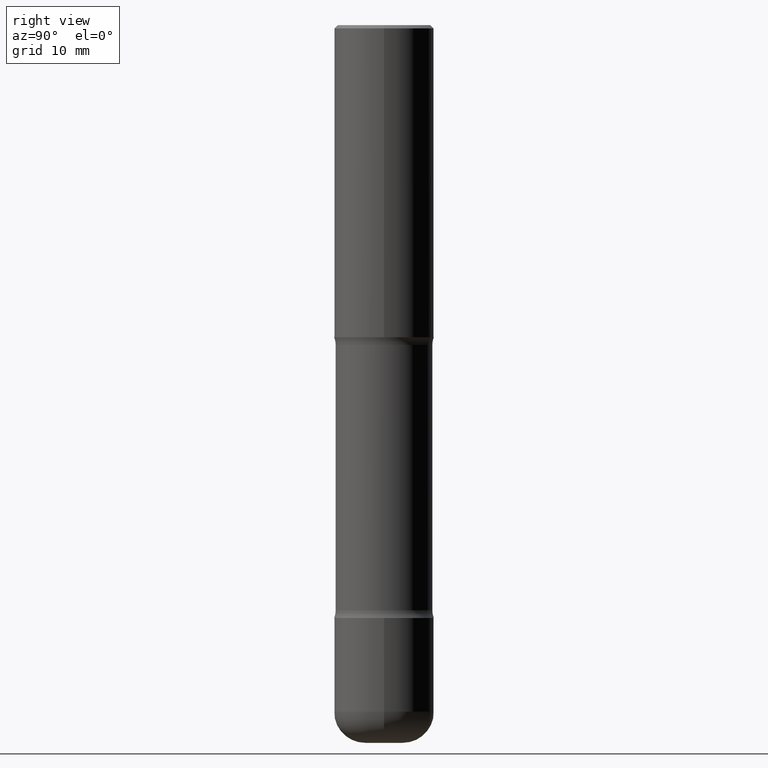
[diagram: clean part render]
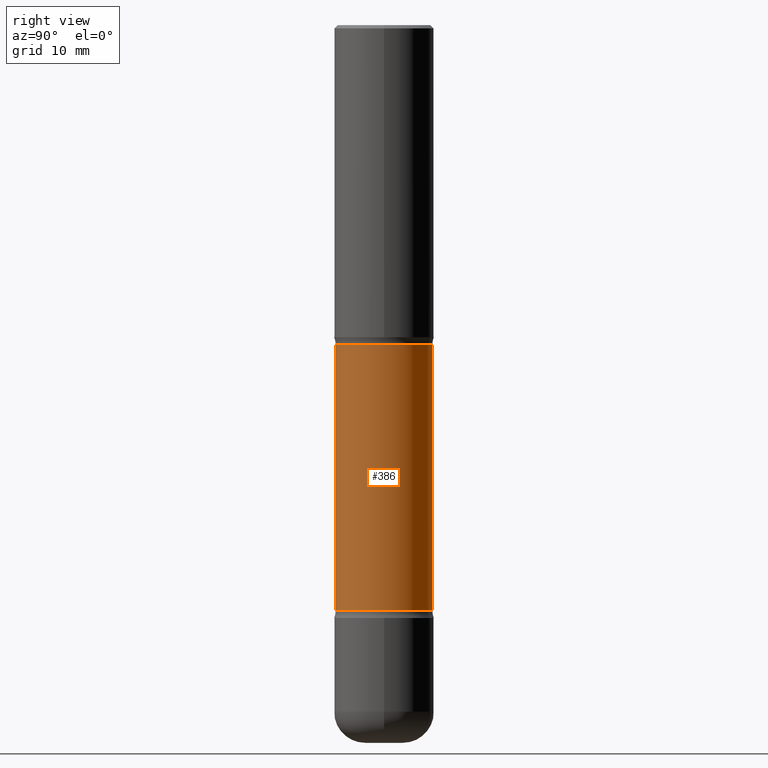
[diagram: same view with one face highlighted and labeled with its STEP entity id]
A machine part, right view. The second image highlights one B-rep face of the part: STEP entity #386.
In plain terms, the highlighted cylindrical surface (partial cylindrical patch) has radius 7.747 mm, axis along (0, -0, -1).
Its self-contained STEP definition (entity closure, byte-faithful):
#2 = VERTEX_POINT ( 'NONE', #418 ) ;
#4 = EDGE_CURVE ( 'NONE', #214, #2, #13, .T. ) ;
#13 = LINE ( 'NONE', #535, #199 ) ;
#29 = ORIENTED_EDGE ( 'NONE', *, *, #178, .T. ) ;
#53 = EDGE_CURVE ( 'NONE', #102, #414, #425, .T. ) ;
#55 = CYLINDRICAL_SURFACE ( 'NONE', #219, 0.3049999999999999378 ) ;
#102 = VERTEX_POINT ( 'NONE', #338 ) ;
#109 = ORIENTED_EDGE ( 'NONE', *, *, #4, .F. ) ;
#131 = CARTESIAN_POINT ( 'NONE',  ( 4.823971588662791399E-29, -7.200355267551965208E-15, -2.017372256956274423 ) ) ;
#154 = ORIENTED_EDGE ( 'NONE', *, *, #521, .F. ) ;
#178 = EDGE_CURVE ( 'NONE', #214, #102, #538, .T. ) ;
#193 = DIRECTION ( 'NONE',  ( 2.508997697352003204E-29, -3.400504350852260021E-15, -1.000000000000000000 ) ) ;
#199 = VECTOR ( 'NONE', #318, 39.37007874015748143 ) ;
#214 = VERTEX_POINT ( 'NONE', #266 ) ;
#219 = AXIS2_PLACEMENT_3D ( 'NONE', #412, #193, #372 ) ;
#245 = DIRECTION ( 'NONE',  ( 2.508997697352003204E-29, -3.400504350852260021E-15, -1.000000000000000000 ) ) ;
#266 = CARTESIAN_POINT ( 'NONE',  ( 2.129803616694359388E-15, 0.3049999999999927769, -2.017372256956275756 ) ) ;
#296 = DIRECTION ( 'NONE',  ( 2.508997697352003204E-29, -3.400504350852260021E-15, -1.000000000000000000 ) ) ;
#306 = EDGE_LOOP ( 'NONE', ( #29, #517, #154, #109 ) ) ;
#307 = DIRECTION ( 'NONE',  ( 2.508997697352003204E-29, -3.400504350852260021E-15, -1.000000000000000000 ) ) ;
#318 = DIRECTION ( 'NONE',  ( 2.508997697352003204E-29, -3.400504350852260021E-15, -1.000000000000000000 ) ) ;
#325 = FACE_OUTER_BOUND ( 'NONE', #306, .T. ) ;
#338 = CARTESIAN_POINT ( 'NONE',  ( -2.126582866859184041E-15, -0.3050000000000072098, -2.017372256956273535 ) ) ;
#367 = VECTOR ( 'NONE', #245, 39.37007874015748143 ) ;
#372 = DIRECTION ( 'NONE',  ( 6.982962677686266711E-15, 1.000000000000000000, -3.582751467100674095E-15 ) ) ;
#378 = CARTESIAN_POINT ( 'NONE',  ( 9.023922048725964423E-29, -1.289264818112535948E-14, -3.691327743043727239 ) ) ;
#386 = ADVANCED_FACE ( 'NONE', ( #325 ), #55, .T. ) ;
#404 = CARTESIAN_POINT ( 'NONE',  ( -2.126582866859139076E-15, -0.3050000000000128164, -3.691327743043726350 ) ) ;
#412 = CARTESIAN_POINT ( 'NONE',  ( 1.112212721578861617E-28, -1.573639562940220266E-14, -4.527600000000000513 ) ) ;
#414 = VERTEX_POINT ( 'NONE', #404 ) ;
#418 = CARTESIAN_POINT ( 'NONE',  ( 2.129803616694400804E-15, 0.3049999999999870037, -3.691327743043728571 ) ) ;
#421 = CIRCLE ( 'NONE', #480, 0.3049999999999998823 ) ;
#425 = LINE ( 'NONE', #556, #367 ) ;
#437 = AXIS2_PLACEMENT_3D ( 'NONE', #131, #307, #477 ) ;
#477 = DIRECTION ( 'NONE',  ( 6.982962677686266711E-15, 1.000000000000000000, -3.582751467100673306E-15 ) ) ;
#480 = AXIS2_PLACEMENT_3D ( 'NONE', #378, #296, #552 ) ;
#517 = ORIENTED_EDGE ( 'NONE', *, *, #53, .T. ) ;
#521 = EDGE_CURVE ( 'NONE', #2, #414, #421, .T. ) ;
#535 = CARTESIAN_POINT ( 'NONE',  ( 2.129803616694422103E-15, 0.3049999999999842282, -4.527600000000001401 ) ) ;
#538 = CIRCLE ( 'NONE', #437, 0.3049999999999999933 ) ;
#552 = DIRECTION ( 'NONE',  ( 6.982962677686266711E-15, 1.000000000000000000, -3.582751467100674095E-15 ) ) ;
#556 = CARTESIAN_POINT ( 'NONE',  ( -2.092451889320205392E-15, -0.3050000000000157030, -4.527599999999998737 ) ) ;